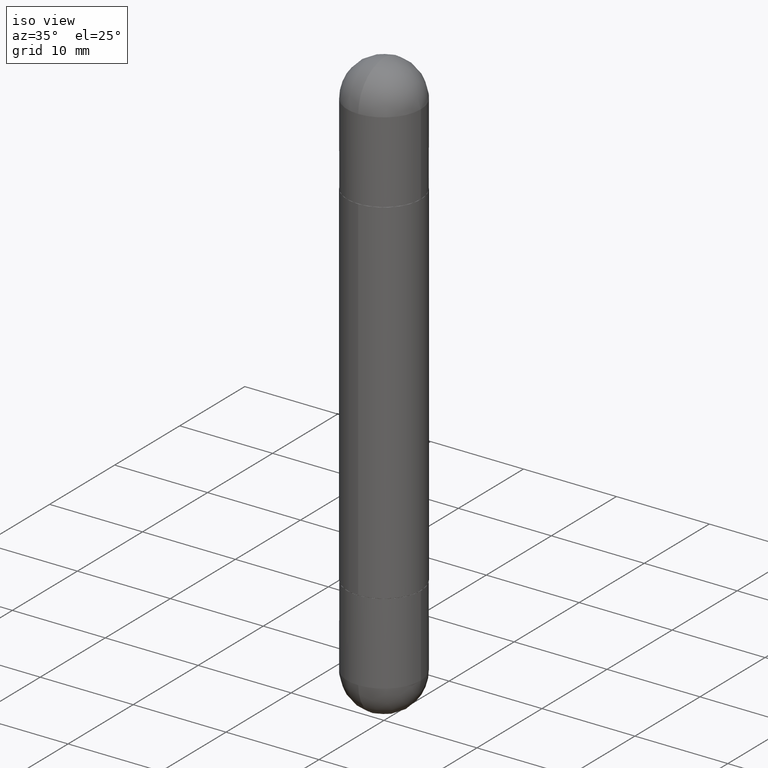
[diagram: clean part render]
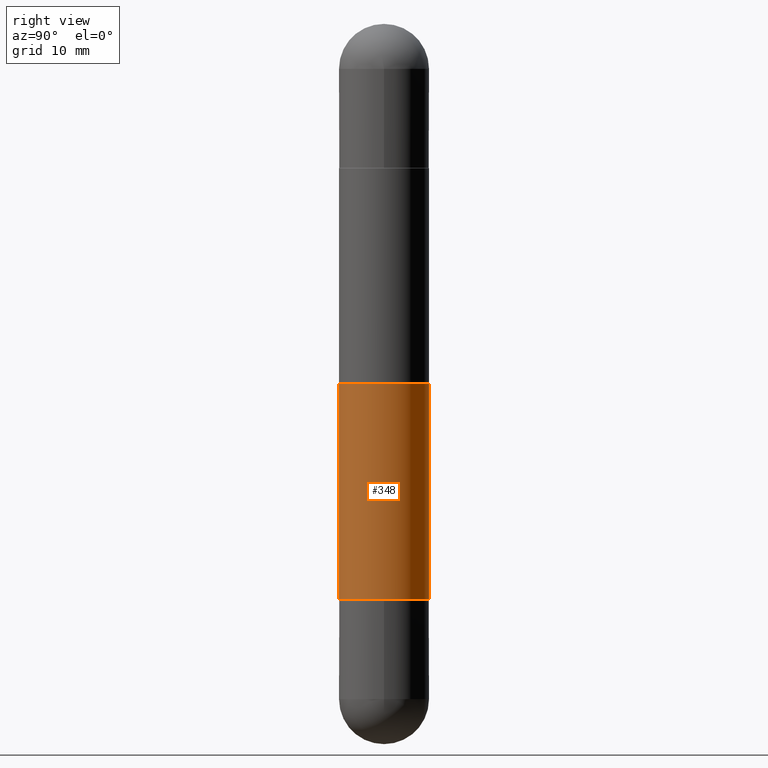
[diagram: tour spotlight — one face highlighted and labeled with its STEP entity id]
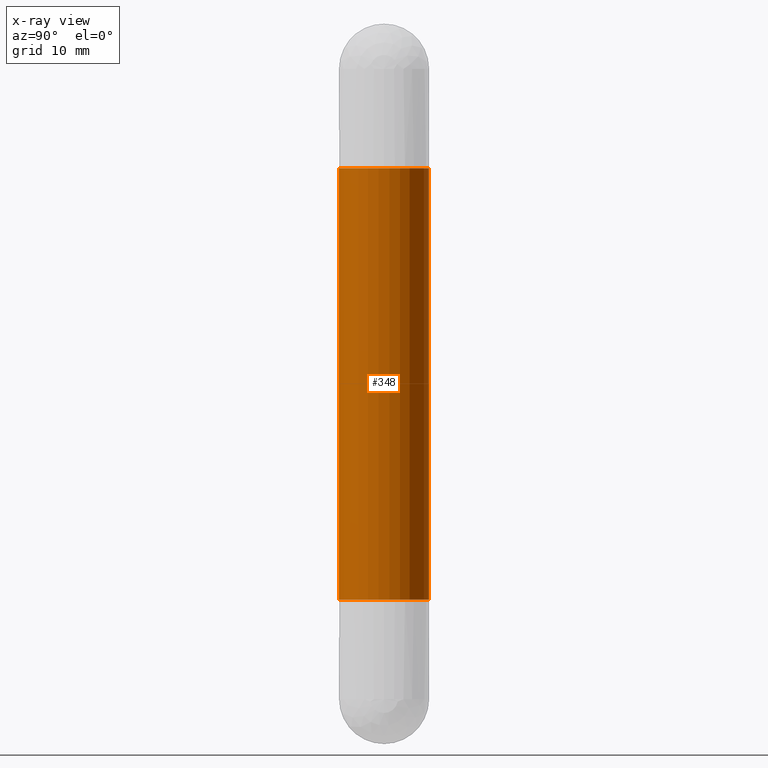
[diagram: x-ray of the same camera — body ghosted, this tour face saturated]
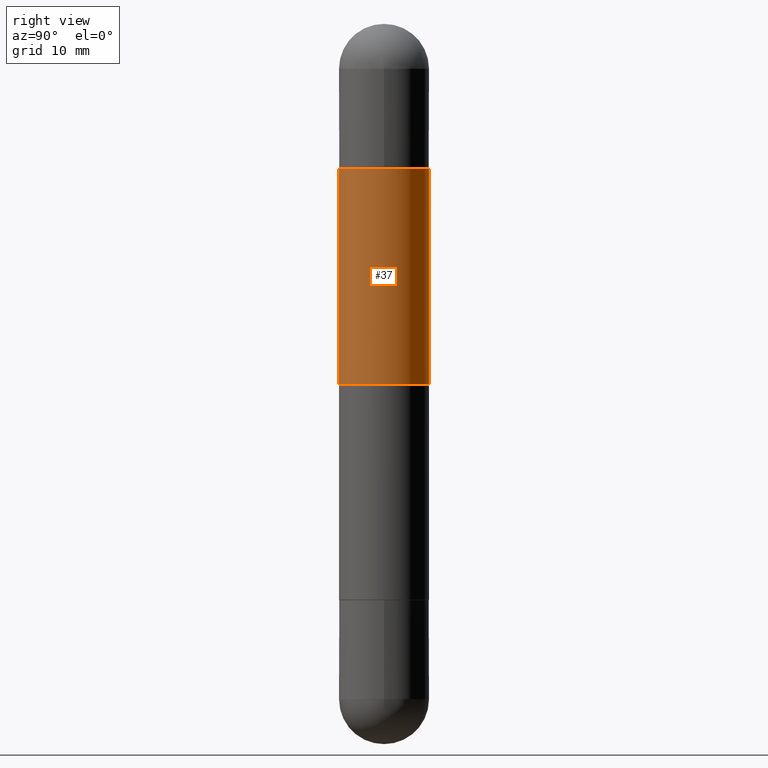
[diagram: tour spotlight — one face highlighted and labeled with its STEP entity id]
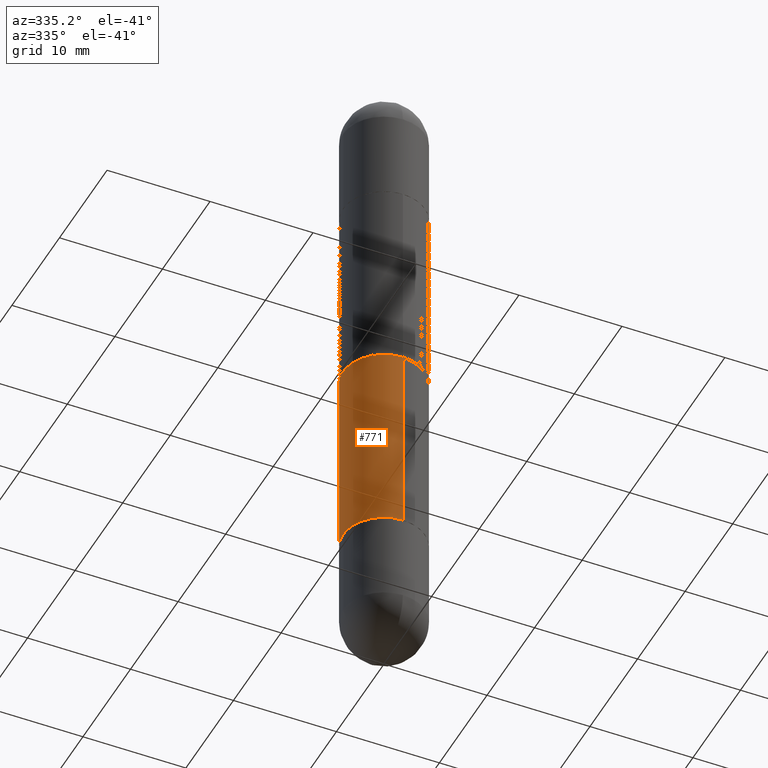
[diagram: tour spotlight — one face highlighted and labeled with its STEP entity id]
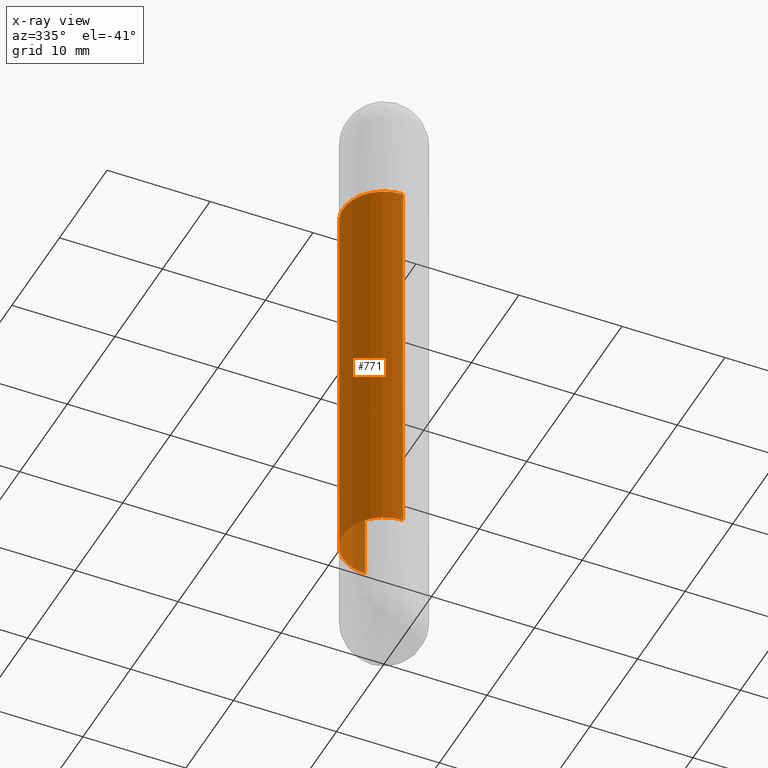
[diagram: x-ray of the same camera — body ghosted, this tour face saturated]
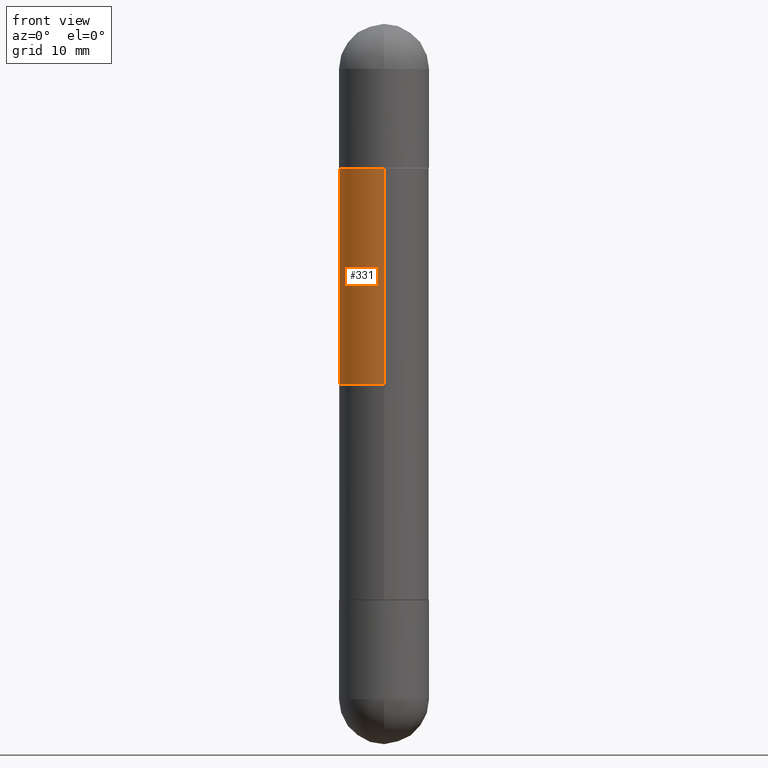
[diagram: tour spotlight — one face highlighted and labeled with its STEP entity id]
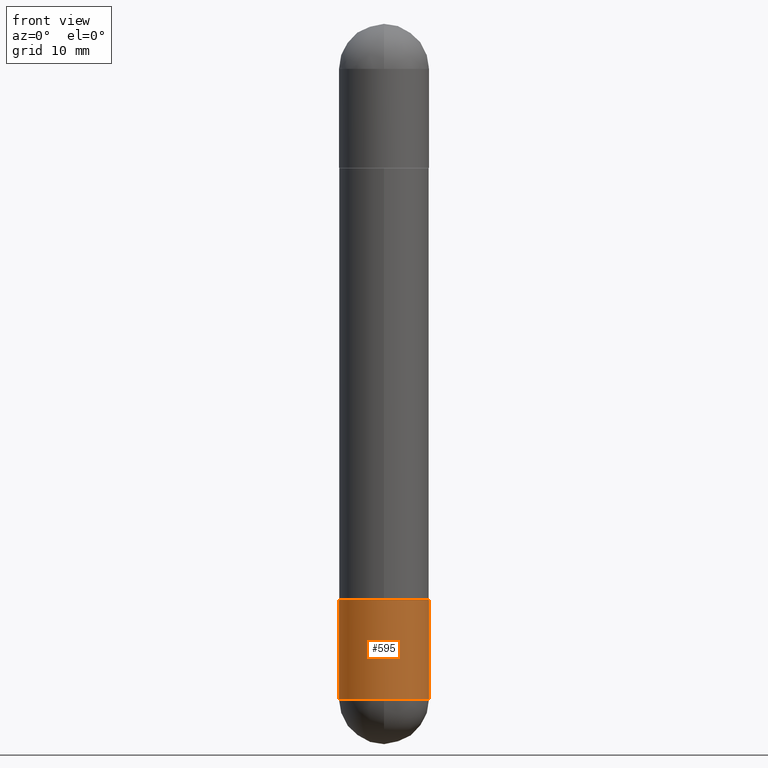
[diagram: tour spotlight — one face highlighted and labeled with its STEP entity id]
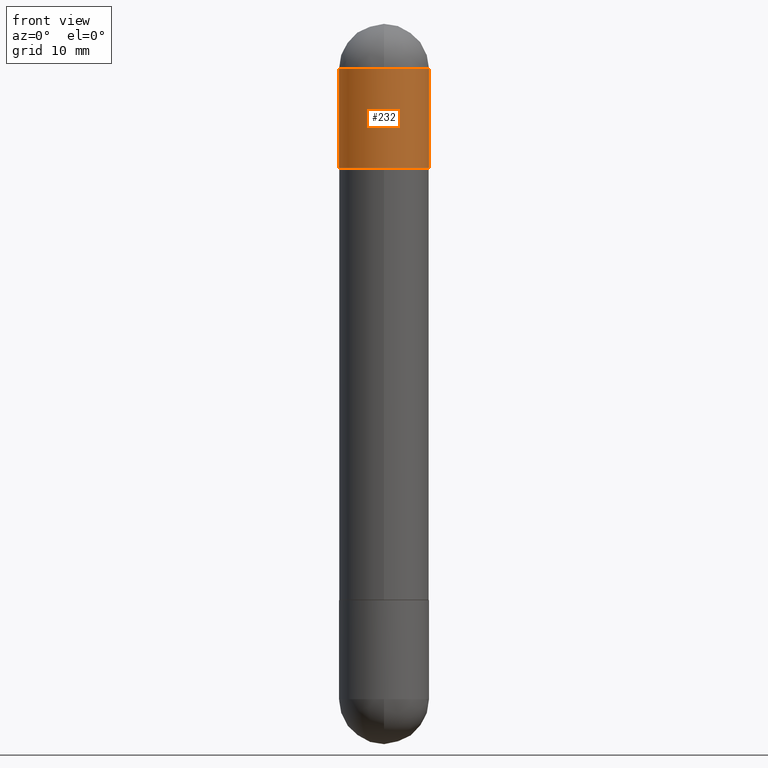
[diagram: tour spotlight — one face highlighted and labeled with its STEP entity id]
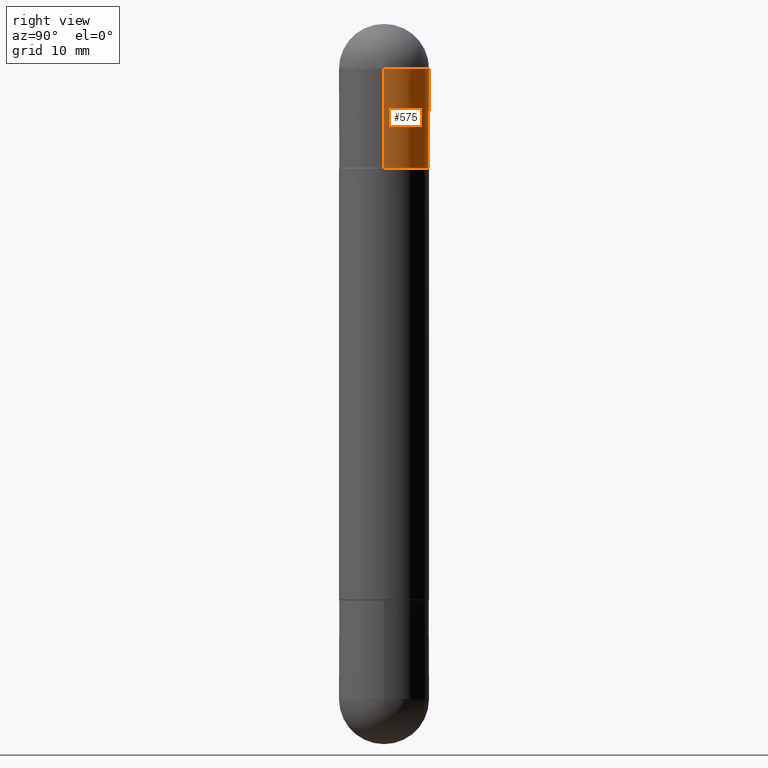
[diagram: tour spotlight — one face highlighted and labeled with its STEP entity id]
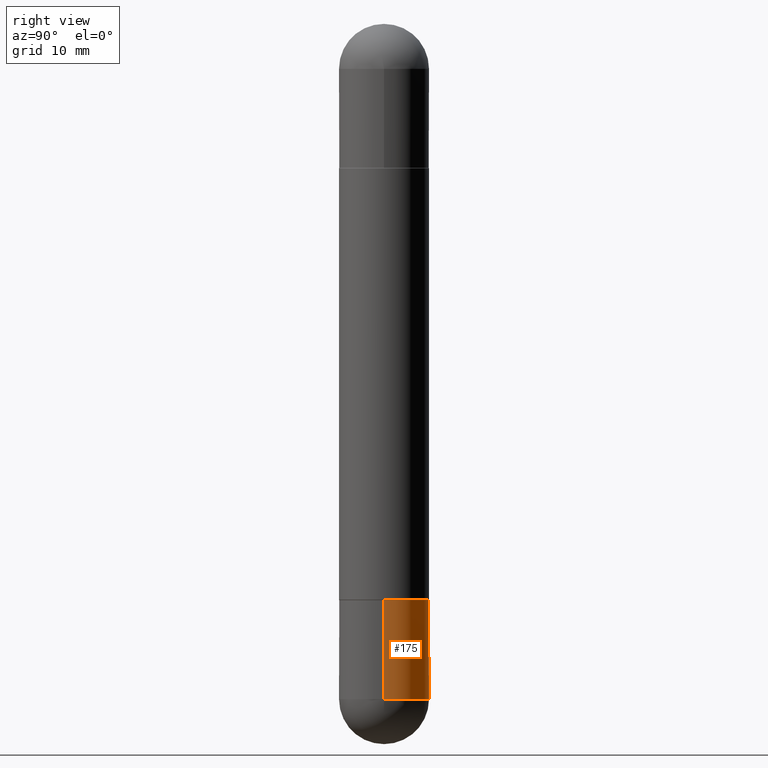
[diagram: tour spotlight — one face highlighted and labeled with its STEP entity id]
A machine part: a face-by-face anatomy tour. The part has 29 B-rep faces; the first image is the clean iso view, then the 8 largest visible faces are spotlighted one at a time (largest first), each with its STEP entity span.

Face 1 — right view, entity #348. An x-ray twin of the same camera follows (body ghosted, this face saturated) — the face is partly hidden behind the body. In plain terms, the highlighted cylindrical surface (partial cylindrical patch) has radius 3.9688 mm, axis along (-0, 0, -1).
Definition (entity closure, byte-faithful):
#23 = EDGE_LOOP ( 'NONE', ( #342, #467, #401, #350 ) ) ;
#25 = VERTEX_POINT ( 'NONE', #294 ) ;
#57 = EDGE_CURVE ( 'NONE', #580, #25, #273, .T. ) ;
#60 = DIRECTION ( 'NONE',  ( -6.982962677686265922E-15, -1.000000000000000000, -3.496765431890250609E-15 ) ) ;
#106 = CARTESIAN_POINT ( 'NONE',  ( -1.091087918388432039E-15, -0.1562500000000072720, -0.5010000000000013332 ) ) ;
#111 = CARTESIAN_POINT ( 'NONE',  ( -1.091087918388479962E-15, -0.1562500000000001388, -2.500000000000001332 ) ) ;
#131 = CIRCLE ( 'NONE', #297, 0.1562500000000002776 ) ;
#141 = VERTEX_POINT ( 'NONE', #180 ) ;
#180 = CARTESIAN_POINT ( 'NONE',  ( 1.071952812151833755E-15, 0.1562499999999933109, -1.999000000000000554 ) ) ;
#201 = CYLINDRICAL_SURFACE ( 'NONE', #638, 0.1562500000000001388 ) ;
#244 = DIRECTION ( 'NONE',  ( -6.982962677686265922E-15, -1.000000000000000000, 3.496765431890250609E-15 ) ) ;
#257 = DIRECTION ( 'NONE',  ( -6.982962677686265922E-15, -1.000000000000000000, -3.496765431890253764E-15 ) ) ;
#273 = CIRCLE ( 'NONE', #468, 0.1562500000000002776 ) ;
#294 = CARTESIAN_POINT ( 'NONE',  ( 1.071952812151852491E-15, 0.1562499999999932832, -0.5010000000000002229 ) ) ;
#297 = AXIS2_PLACEMENT_3D ( 'NONE', #417, #741, #244 ) ;
#342 = ORIENTED_EDGE ( 'NONE', *, *, #600, .F. ) ;
#348 = ADVANCED_FACE ( 'NONE', ( #450 ), #201, .T. ) ;
#350 = ORIENTED_EDGE ( 'NONE', *, *, #665, .T. ) ;
#368 = CARTESIAN_POINT ( 'NONE',  ( -1.091087918388432039E-15, -0.1562500000000072442, -1.998999999999999444 ) ) ;
#401 = ORIENTED_EDGE ( 'NONE', *, *, #654, .T. ) ;
#414 = DIRECTION ( 'NONE',  ( -2.445337981103964041E-29, 3.491668687805485632E-15, -1.000000000000000000 ) ) ;
#415 = DIRECTION ( 'NONE',  ( 2.445337981103964041E-29, -3.491668687805485632E-15, 1.000000000000000000 ) ) ;
#417 = CARTESIAN_POINT ( 'NONE',  ( 4.888230624226824176E-29, -6.979845706923165572E-15, -1.998999999999999888 ) ) ;
#424 = CARTESIAN_POINT ( 'NONE',  ( 1.071952812151802595E-15, 0.1562500000000001388, -2.500000000000000000 ) ) ;
#450 = FACE_OUTER_BOUND ( 'NONE', #23, .T. ) ;
#467 = ORIENTED_EDGE ( 'NONE', *, *, #57, .F. ) ;
#468 = AXIS2_PLACEMENT_3D ( 'NONE', #610, #415, #60 ) ;
#580 = VERTEX_POINT ( 'NONE', #106 ) ;
#600 = EDGE_CURVE ( 'NONE', #25, #141, #609, .T. ) ;
#609 = LINE ( 'NONE', #424, #692 ) ;
#610 = CARTESIAN_POINT ( 'NONE',  ( 4.888230624226824176E-29, -6.979845706923165572E-15, -0.5010000000000007780 ) ) ;
#629 = CARTESIAN_POINT ( 'NONE',  ( 0.000000000000000000, 0.000000000000000000, -2.500000000000000444 ) ) ;
#638 = AXIS2_PLACEMENT_3D ( 'NONE', #629, #756, #257 ) ;
#654 = EDGE_CURVE ( 'NONE', #580, #658, #735, .T. ) ;
#658 = VERTEX_POINT ( 'NONE', #368 ) ;
#665 = EDGE_CURVE ( 'NONE', #658, #141, #131, .T. ) ;
#692 = VECTOR ( 'NONE', #414, 39.37007874015748143 ) ;
#720 = VECTOR ( 'NONE', #796, 39.37007874015748143 ) ;
#735 = LINE ( 'NONE', #111, #720 ) ;
#741 = DIRECTION ( 'NONE',  ( -2.445337981103964041E-29, 3.491668687805485632E-15, 1.000000000000000000 ) ) ;
#756 = DIRECTION ( 'NONE',  ( -2.445337981103964041E-29, 3.491668687805485632E-15, -1.000000000000000000 ) ) ;
#796 = DIRECTION ( 'NONE',  ( -2.445337981103964041E-29, 3.491668687805485632E-15, -1.000000000000000000 ) ) ;

Face 2 — right view, entity #37. In plain terms, the highlighted cylindrical surface (partial cylindrical patch) has radius 3.9688 mm, axis along (-0, 0, -1).
Definition (entity closure, byte-faithful):
#15 = CARTESIAN_POINT ( 'NONE',  ( 1.071952812151851110E-15, 0.1562499999999957812, -1.250000000000000222 ) ) ;
#22 = CIRCLE ( 'NONE', #479, 0.1562500000000002776 ) ;
#37 = ADVANCED_FACE ( 'NONE', ( #364 ), #671, .T. ) ;
#48 = CARTESIAN_POINT ( 'NONE',  ( 4.888230624226824176E-29, -6.979845706923165572E-15, -0.5010000000000007780 ) ) ;
#62 = DIRECTION ( 'NONE',  ( -6.982962677686265922E-15, -1.000000000000000000, -3.496765431890250609E-15 ) ) ;
#114 = CARTESIAN_POINT ( 'NONE',  ( 1.071952812151802595E-15, 0.1562500000000001388, -2.500000000000000000 ) ) ;
#144 = ORIENTED_EDGE ( 'NONE', *, *, #686, .F. ) ;
#145 = VECTOR ( 'NONE', #485, 39.37007874015748143 ) ;
#231 = ORIENTED_EDGE ( 'NONE', *, *, #625, .F. ) ;
#241 = LINE ( 'NONE', #114, #145 ) ;
#245 = CARTESIAN_POINT ( 'NONE',  ( 0.000000000000000000, 0.000000000000000000, -2.500000000000000444 ) ) ;
#255 = EDGE_CURVE ( 'NONE', #285, #757, #260, .T. ) ;
#260 = CIRCLE ( 'NONE', #416, 0.1562500000000001388 ) ;
#285 = VERTEX_POINT ( 'NONE', #15 ) ;
#326 = VECTOR ( 'NONE', #527, 39.37007874015748143 ) ;
#357 = DIRECTION ( 'NONE',  ( -6.982962677686265922E-15, -1.000000000000000000, -3.496765431890253764E-15 ) ) ;
#359 = DIRECTION ( 'NONE',  ( 2.445337981103964041E-29, -3.491668687805485632E-15, 1.000000000000000000 ) ) ;
#364 = FACE_OUTER_BOUND ( 'NONE', #456, .T. ) ;
#372 = CARTESIAN_POINT ( 'NONE',  ( 1.071952812151852491E-15, 0.1562499999999932832, -0.5010000000000002229 ) ) ;
#382 = CARTESIAN_POINT ( 'NONE',  ( -1.091087918388440322E-15, -0.1562500000000045242, -1.250000000000000222 ) ) ;
#409 = ORIENTED_EDGE ( 'NONE', *, *, #255, .F. ) ;
#416 = AXIS2_PLACEMENT_3D ( 'NONE', #446, #441, #511 ) ;
#441 = DIRECTION ( 'NONE',  ( -0.000000000000000000, -0.000000000000000000, -1.000000000000000000 ) ) ;
#446 = CARTESIAN_POINT ( 'NONE',  ( 3.056672476379955962E-29, -4.364585859756858224E-15, -1.250000000000000222 ) ) ;
#456 = EDGE_LOOP ( 'NONE', ( #144, #231, #519, #409 ) ) ;
#476 = EDGE_CURVE ( 'NONE', #587, #757, #794, .T. ) ;
#479 = AXIS2_PLACEMENT_3D ( 'NONE', #48, #359, #62 ) ;
#485 = DIRECTION ( 'NONE',  ( -2.445337981103964041E-29, 3.491668687805485632E-15, -1.000000000000000000 ) ) ;
#511 = DIRECTION ( 'NONE',  ( -1.000000000000000000, 0.000000000000000000, 0.000000000000000000 ) ) ;
#519 = ORIENTED_EDGE ( 'NONE', *, *, #476, .T. ) ;
#527 = DIRECTION ( 'NONE',  ( -2.445337981103964041E-29, 3.491668687805485632E-15, -1.000000000000000000 ) ) ;
#587 = VERTEX_POINT ( 'NONE', #597 ) ;
#593 = CARTESIAN_POINT ( 'NONE',  ( -1.091087918388479962E-15, -0.1562500000000001388, -2.500000000000001332 ) ) ;
#597 = CARTESIAN_POINT ( 'NONE',  ( -1.091087918388432039E-15, -0.1562500000000072720, -0.5010000000000013332 ) ) ;
#613 = AXIS2_PLACEMENT_3D ( 'NONE', #245, #742, #357 ) ;
#625 = EDGE_CURVE ( 'NONE', #587, #730, #22, .T. ) ;
#671 = CYLINDRICAL_SURFACE ( 'NONE', #613, 0.1562500000000001388 ) ;
#686 = EDGE_CURVE ( 'NONE', #730, #285, #241, .T. ) ;
#730 = VERTEX_POINT ( 'NONE', #372 ) ;
#742 = DIRECTION ( 'NONE',  ( -2.445337981103964041E-29, 3.491668687805485632E-15, -1.000000000000000000 ) ) ;
#757 = VERTEX_POINT ( 'NONE', #382 ) ;
#794 = LINE ( 'NONE', #593, #326 ) ;

Face 3 — auxiliary view, entity #771. An x-ray twin of the same camera follows (body ghosted, this face saturated) — the face is partly hidden behind the body. In plain terms, the highlighted cylindrical surface (partial cylindrical patch) has radius 3.9688 mm, axis along (-0, 0, -1).
Definition (entity closure, byte-faithful):
#6 = ORIENTED_EDGE ( 'NONE', *, *, #600, .T. ) ;
#25 = VERTEX_POINT ( 'NONE', #294 ) ;
#47 = EDGE_CURVE ( 'NONE', #141, #658, #134, .T. ) ;
#70 = DIRECTION ( 'NONE',  ( 2.445337981103964041E-29, -3.491668687805485632E-15, 1.000000000000000000 ) ) ;
#106 = CARTESIAN_POINT ( 'NONE',  ( -1.091087918388432039E-15, -0.1562500000000072720, -0.5010000000000013332 ) ) ;
#110 = CIRCLE ( 'NONE', #561, 0.1562500000000002776 ) ;
#111 = CARTESIAN_POINT ( 'NONE',  ( -1.091087918388479962E-15, -0.1562500000000001388, -2.500000000000001332 ) ) ;
#132 = CARTESIAN_POINT ( 'NONE',  ( 0.000000000000000000, 0.000000000000000000, -2.500000000000000444 ) ) ;
#134 = CIRCLE ( 'NONE', #695, 0.1562500000000002776 ) ;
#135 = DIRECTION ( 'NONE',  ( -6.982962677686265922E-15, -1.000000000000000000, -3.496765431890250609E-15 ) ) ;
#138 = CYLINDRICAL_SURFACE ( 'NONE', #773, 0.1562500000000001388 ) ;
#141 = VERTEX_POINT ( 'NONE', #180 ) ;
#142 = FACE_OUTER_BOUND ( 'NONE', #292, .T. ) ;
#180 = CARTESIAN_POINT ( 'NONE',  ( 1.071952812151833755E-15, 0.1562499999999933109, -1.999000000000000554 ) ) ;
#196 = DIRECTION ( 'NONE',  ( -2.445337981103964041E-29, 3.491668687805485632E-15, -1.000000000000000000 ) ) ;
#211 = ORIENTED_EDGE ( 'NONE', *, *, #47, .T. ) ;
#292 = EDGE_LOOP ( 'NONE', ( #349, #6, #211, #502 ) ) ;
#294 = CARTESIAN_POINT ( 'NONE',  ( 1.071952812151852491E-15, 0.1562499999999932832, -0.5010000000000002229 ) ) ;
#308 = EDGE_CURVE ( 'NONE', #25, #580, #110, .T. ) ;
#349 = ORIENTED_EDGE ( 'NONE', *, *, #308, .F. ) ;
#360 = DIRECTION ( 'NONE',  ( -2.445337981103964041E-29, 3.491668687805485632E-15, 1.000000000000000000 ) ) ;
#368 = CARTESIAN_POINT ( 'NONE',  ( -1.091087918388432039E-15, -0.1562500000000072442, -1.998999999999999444 ) ) ;
#369 = DIRECTION ( 'NONE',  ( -6.982962677686265922E-15, -1.000000000000000000, 3.496765431890250609E-15 ) ) ;
#414 = DIRECTION ( 'NONE',  ( -2.445337981103964041E-29, 3.491668687805485632E-15, -1.000000000000000000 ) ) ;
#424 = CARTESIAN_POINT ( 'NONE',  ( 1.071952812151802595E-15, 0.1562500000000001388, -2.500000000000000000 ) ) ;
#489 = CARTESIAN_POINT ( 'NONE',  ( 4.888230624226824176E-29, -6.979845706923165572E-15, -1.998999999999999888 ) ) ;
#502 = ORIENTED_EDGE ( 'NONE', *, *, #654, .F. ) ;
#561 = AXIS2_PLACEMENT_3D ( 'NONE', #693, #70, #135 ) ;
#580 = VERTEX_POINT ( 'NONE', #106 ) ;
#600 = EDGE_CURVE ( 'NONE', #25, #141, #609, .T. ) ;
#609 = LINE ( 'NONE', #424, #692 ) ;
#654 = EDGE_CURVE ( 'NONE', #580, #658, #735, .T. ) ;
#658 = VERTEX_POINT ( 'NONE', #368 ) ;
#691 = DIRECTION ( 'NONE',  ( -6.982962677686265922E-15, -1.000000000000000000, -3.496765431890253764E-15 ) ) ;
#692 = VECTOR ( 'NONE', #414, 39.37007874015748143 ) ;
#693 = CARTESIAN_POINT ( 'NONE',  ( 4.888230624226824176E-29, -6.979845706923165572E-15, -0.5010000000000007780 ) ) ;
#695 = AXIS2_PLACEMENT_3D ( 'NONE', #489, #360, #369 ) ;
#720 = VECTOR ( 'NONE', #796, 39.37007874015748143 ) ;
#735 = LINE ( 'NONE', #111, #720 ) ;
#771 = ADVANCED_FACE ( 'NONE', ( #142 ), #138, .T. ) ;
#773 = AXIS2_PLACEMENT_3D ( 'NONE', #132, #196, #691 ) ;
#796 = DIRECTION ( 'NONE',  ( -2.445337981103964041E-29, 3.491668687805485632E-15, -1.000000000000000000 ) ) ;

Face 4 — front view, entity #331. In plain terms, the highlighted cylindrical surface (partial cylindrical patch) has radius 3.9688 mm, axis along (-0, 0, -1).
Definition (entity closure, byte-faithful):
#15 = CARTESIAN_POINT ( 'NONE',  ( 1.071952812151851110E-15, 0.1562499999999957812, -1.250000000000000222 ) ) ;
#27 = AXIS2_PLACEMENT_3D ( 'NONE', #702, #501, #573 ) ;
#46 = ORIENTED_EDGE ( 'NONE', *, *, #453, .F. ) ;
#98 = ORIENTED_EDGE ( 'NONE', *, *, #619, .F. ) ;
#114 = CARTESIAN_POINT ( 'NONE',  ( 1.071952812151802595E-15, 0.1562500000000001388, -2.500000000000000000 ) ) ;
#145 = VECTOR ( 'NONE', #485, 39.37007874015748143 ) ;
#154 = DIRECTION ( 'NONE',  ( -1.000000000000000000, 0.000000000000000000, 0.000000000000000000 ) ) ;
#206 = FACE_OUTER_BOUND ( 'NONE', #634, .T. ) ;
#241 = LINE ( 'NONE', #114, #145 ) ;
#271 = ORIENTED_EDGE ( 'NONE', *, *, #476, .F. ) ;
#285 = VERTEX_POINT ( 'NONE', #15 ) ;
#289 = AXIS2_PLACEMENT_3D ( 'NONE', #656, #462, #154 ) ;
#293 = DIRECTION ( 'NONE',  ( 2.445337981103964041E-29, -3.491668687805485632E-15, 1.000000000000000000 ) ) ;
#295 = DIRECTION ( 'NONE',  ( -6.982962677686265922E-15, -1.000000000000000000, -3.496765431890250609E-15 ) ) ;
#326 = VECTOR ( 'NONE', #527, 39.37007874015748143 ) ;
#331 = ADVANCED_FACE ( 'NONE', ( #206 ), #639, .T. ) ;
#372 = CARTESIAN_POINT ( 'NONE',  ( 1.071952812151852491E-15, 0.1562499999999932832, -0.5010000000000002229 ) ) ;
#382 = CARTESIAN_POINT ( 'NONE',  ( -1.091087918388440322E-15, -0.1562500000000045242, -1.250000000000000222 ) ) ;
#413 = CIRCLE ( 'NONE', #649, 0.1562500000000002776 ) ;
#453 = EDGE_CURVE ( 'NONE', #757, #285, #683, .T. ) ;
#462 = DIRECTION ( 'NONE',  ( -0.000000000000000000, -0.000000000000000000, -1.000000000000000000 ) ) ;
#476 = EDGE_CURVE ( 'NONE', #587, #757, #794, .T. ) ;
#485 = DIRECTION ( 'NONE',  ( -2.445337981103964041E-29, 3.491668687805485632E-15, -1.000000000000000000 ) ) ;
#501 = DIRECTION ( 'NONE',  ( -2.445337981103964041E-29, 3.491668687805485632E-15, -1.000000000000000000 ) ) ;
#527 = DIRECTION ( 'NONE',  ( -2.445337981103964041E-29, 3.491668687805485632E-15, -1.000000000000000000 ) ) ;
#556 = CARTESIAN_POINT ( 'NONE',  ( 4.888230624226824176E-29, -6.979845706923165572E-15, -0.5010000000000007780 ) ) ;
#573 = DIRECTION ( 'NONE',  ( -6.982962677686265922E-15, -1.000000000000000000, -3.496765431890253764E-15 ) ) ;
#587 = VERTEX_POINT ( 'NONE', #597 ) ;
#593 = CARTESIAN_POINT ( 'NONE',  ( -1.091087918388479962E-15, -0.1562500000000001388, -2.500000000000001332 ) ) ;
#597 = CARTESIAN_POINT ( 'NONE',  ( -1.091087918388432039E-15, -0.1562500000000072720, -0.5010000000000013332 ) ) ;
#619 = EDGE_CURVE ( 'NONE', #730, #587, #413, .T. ) ;
#634 = EDGE_LOOP ( 'NONE', ( #98, #655, #46, #271 ) ) ;
#639 = CYLINDRICAL_SURFACE ( 'NONE', #27, 0.1562500000000001388 ) ;
#649 = AXIS2_PLACEMENT_3D ( 'NONE', #556, #293, #295 ) ;
#655 = ORIENTED_EDGE ( 'NONE', *, *, #686, .T. ) ;
#656 = CARTESIAN_POINT ( 'NONE',  ( 3.056672476379955962E-29, -4.364585859756858224E-15, -1.250000000000000222 ) ) ;
#683 = CIRCLE ( 'NONE', #289, 0.1562500000000001388 ) ;
#686 = EDGE_CURVE ( 'NONE', #730, #285, #241, .T. ) ;
#702 = CARTESIAN_POINT ( 'NONE',  ( 0.000000000000000000, 0.000000000000000000, -2.500000000000000444 ) ) ;
#730 = VERTEX_POINT ( 'NONE', #372 ) ;
#757 = VERTEX_POINT ( 'NONE', #382 ) ;
#794 = LINE ( 'NONE', #593, #326 ) ;

Face 5 — front view, entity #595. In plain terms, the highlighted cylindrical surface (partial cylindrical patch) has radius 3.9688 mm, axis along (-0, 0, 1).
Definition (entity closure, byte-faithful):
#34 = CARTESIAN_POINT ( 'NONE',  ( -0.1562500000000000000, 1.110223024625156540E-15, -7.685836078523291160E-30 ) ) ;
#58 = CARTESIAN_POINT ( 'NONE',  ( -0.1562500000000000000, -6.472838008174799945E-15, -2.000000000000000000 ) ) ;
#79 = VERTEX_POINT ( 'NONE', #606 ) ;
#94 = VERTEX_POINT ( 'NONE', #482 ) ;
#146 = EDGE_CURVE ( 'NONE', #726, #262, #522, .T. ) ;
#148 = EDGE_LOOP ( 'NONE', ( #474, #166, #588, #570, #713 ) ) ;
#166 = ORIENTED_EDGE ( 'NONE', *, *, #747, .T. ) ;
#187 = DIRECTION ( 'NONE',  ( -2.445468806185136597E-29, 3.491481338843145583E-15, 1.000000000000000000 ) ) ;
#192 = DIRECTION ( 'NONE',  ( 1.000000000000000000, -6.982962677686269077E-15, 0.000000000000000000 ) ) ;
#247 = CARTESIAN_POINT ( 'NONE',  ( 0.000000000000000000, 0.000000000000000000, 0.000000000000000000 ) ) ;
#252 = CARTESIAN_POINT ( 'NONE',  ( 4.890937612370273194E-29, -6.982962677686291165E-15, -2.000000000000000000 ) ) ;
#262 = VERTEX_POINT ( 'NONE', #380 ) ;
#279 = DIRECTION ( 'NONE',  ( -2.445468806185136877E-29, 3.491481338843145188E-15, 1.000000000000000000 ) ) ;
#302 = FACE_OUTER_BOUND ( 'NONE', #148, .T. ) ;
#309 = DIRECTION ( 'NONE',  ( -2.445468806185136597E-29, 3.491481338843145583E-15, 1.000000000000000000 ) ) ;
#322 = CIRCLE ( 'NONE', #787, 0.1562500000000000000 ) ;
#344 = LINE ( 'NONE', #34, #392 ) ;
#356 = DIRECTION ( 'NONE',  ( -2.445468806185136597E-29, 3.491481338843145583E-15, 1.000000000000000000 ) ) ;
#362 = CARTESIAN_POINT ( 'NONE',  ( 0.1562500000000000000, -1.091087918388479174E-15, 7.619026212181150377E-30 ) ) ;
#380 = CARTESIAN_POINT ( 'NONE',  ( 0.1562500000000000000, -8.074050596074770339E-15, -2.000000000000000000 ) ) ;
#387 = CIRCLE ( 'NONE', #582, 0.1562500000000000000 ) ;
#392 = VECTOR ( 'NONE', #279, 39.37007874015748143 ) ;
#402 = VECTOR ( 'NONE', #746, 39.37007874015748143 ) ;
#412 = VERTEX_POINT ( 'NONE', #579 ) ;
#474 = ORIENTED_EDGE ( 'NONE', *, *, #545, .F. ) ;
#482 = CARTESIAN_POINT ( 'NONE',  ( 0.1562500000000000000, -8.674148951188436448E-15, -2.343750000000000000 ) ) ;
#522 = CIRCLE ( 'NONE', #706, 0.1562500000000000000 ) ;
#545 = EDGE_CURVE ( 'NONE', #412, #726, #344, .T. ) ;
#558 = DIRECTION ( 'NONE',  ( 1.000000000000000000, -6.982962677686262766E-15, 0.000000000000000000 ) ) ;
#570 = ORIENTED_EDGE ( 'NONE', *, *, #715, .T. ) ;
#579 = CARTESIAN_POINT ( 'NONE',  ( -0.1562500000000000000, -6.472838008174800734E-15, -2.343750000000000000 ) ) ;
#582 = AXIS2_PLACEMENT_3D ( 'NONE', #810, #615, #669 ) ;
#588 = ORIENTED_EDGE ( 'NONE', *, *, #676, .T. ) ;
#595 = ADVANCED_FACE ( 'NONE', ( #302 ), #684, .T. ) ;
#606 = CARTESIAN_POINT ( 'NONE',  ( -1.110223024625101517E-15, -0.1562500000000085487, -2.343749999999999556 ) ) ;
#615 = DIRECTION ( 'NONE',  ( -2.445468806185136597E-29, 3.491481338843145583E-15, 1.000000000000000000 ) ) ;
#617 = CARTESIAN_POINT ( 'NONE',  ( 5.731567514496413899E-29, -8.183159387913622595E-15, -2.343750000000000000 ) ) ;
#669 = DIRECTION ( 'NONE',  ( 1.000000000000000000, -6.982962677686262766E-15, 0.000000000000000000 ) ) ;
#676 = EDGE_CURVE ( 'NONE', #79, #94, #387, .T. ) ;
#678 = DIRECTION ( 'NONE',  ( 1.000000000000000000, -6.982962677686266711E-15, 4.876176775795936353E-29 ) ) ;
#684 = CYLINDRICAL_SURFACE ( 'NONE', #759, 0.1562500000000000000 ) ;
#706 = AXIS2_PLACEMENT_3D ( 'NONE', #252, #187, #192 ) ;
#713 = ORIENTED_EDGE ( 'NONE', *, *, #146, .F. ) ;
#715 = EDGE_CURVE ( 'NONE', #94, #262, #731, .T. ) ;
#726 = VERTEX_POINT ( 'NONE', #58 ) ;
#731 = LINE ( 'NONE', #362, #402 ) ;
#746 = DIRECTION ( 'NONE',  ( -2.445468806185136877E-29, 3.491481338843145188E-15, 1.000000000000000000 ) ) ;
#747 = EDGE_CURVE ( 'NONE', #412, #79, #322, .T. ) ;
#759 = AXIS2_PLACEMENT_3D ( 'NONE', #247, #356, #678 ) ;
#787 = AXIS2_PLACEMENT_3D ( 'NONE', #617, #309, #558 ) ;
#810 = CARTESIAN_POINT ( 'NONE',  ( 5.731567514496413899E-29, -8.183159387913622595E-15, -2.343750000000000000 ) ) ;

Face 6 — front view, entity #232. In plain terms, the highlighted cylindrical surface (partial cylindrical patch) has radius 3.9688 mm, axis along (-0, 0, -1).
Definition (entity closure, byte-faithful):
#3 = VERTEX_POINT ( 'NONE', #161 ) ;
#41 = ORIENTED_EDGE ( 'NONE', *, *, #371, .T. ) ;
#67 = CARTESIAN_POINT ( 'NONE',  ( 4.890937612370273194E-29, -6.982962677686291165E-15, -0.5000000000000006661 ) ) ;
#88 = DIRECTION ( 'NONE',  ( 1.000000000000000000, -6.982962677686262766E-15, 0.000000000000000000 ) ) ;
#95 = AXIS2_PLACEMENT_3D ( 'NONE', #562, #717, #88 ) ;
#109 = EDGE_CURVE ( 'NONE', #3, #627, #183, .T. ) ;
#117 = DIRECTION ( 'NONE',  ( 2.445468806185136597E-29, -3.491481338843145583E-15, 1.000000000000000000 ) ) ;
#123 = CIRCLE ( 'NONE', #228, 0.1562500000000000000 ) ;
#147 = LINE ( 'NONE', #390, #614 ) ;
#152 = ORIENTED_EDGE ( 'NONE', *, *, #398, .F. ) ;
#161 = CARTESIAN_POINT ( 'NONE',  ( 0.1562500000000000000, -8.674148951188436448E-15, -0.1562500000000005551 ) ) ;
#181 = CARTESIAN_POINT ( 'NONE',  ( 5.731567514496413899E-29, -8.183159387913622595E-15, -0.1562500000000005551 ) ) ;
#183 = LINE ( 'NONE', #423, #428 ) ;
#185 = CARTESIAN_POINT ( 'NONE',  ( -1.071952812151746981E-15, -0.1562500000000085487, -0.1562500000000011102 ) ) ;
#228 = AXIS2_PLACEMENT_3D ( 'NONE', #67, #455, #314 ) ;
#232 = ADVANCED_FACE ( 'NONE', ( #754 ), #688, .T. ) ;
#238 = CARTESIAN_POINT ( 'NONE',  ( 0.000000000000000000, 0.000000000000000000, -2.500000000000000444 ) ) ;
#253 = DIRECTION ( 'NONE',  ( 1.000000000000000000, -6.982962677686266711E-15, 0.000000000000000000 ) ) ;
#268 = EDGE_LOOP ( 'NONE', ( #689, #41, #785, #581, #152 ) ) ;
#298 = DIRECTION ( 'NONE',  ( -2.445468806185136877E-29, 3.491481338843145188E-15, -1.000000000000000000 ) ) ;
#305 = DIRECTION ( 'NONE',  ( 1.000000000000000000, -6.982962677686262766E-15, 0.000000000000000000 ) ) ;
#314 = DIRECTION ( 'NONE',  ( 1.000000000000000000, -6.982962677686269077E-15, 0.000000000000000000 ) ) ;
#371 = EDGE_CURVE ( 'NONE', #442, #524, #147, .T. ) ;
#383 = DIRECTION ( 'NONE',  ( -2.445468806185136597E-29, 3.491481338843145583E-15, -1.000000000000000000 ) ) ;
#390 = CARTESIAN_POINT ( 'NONE',  ( -0.1562500000000000000, 1.071952812151801807E-15, -2.500000000000000444 ) ) ;
#393 = EDGE_CURVE ( 'NONE', #524, #627, #123, .T. ) ;
#395 = CARTESIAN_POINT ( 'NONE',  ( -0.1562500000000000000, -6.511108220648156257E-15, -0.1562500000000005551 ) ) ;
#398 = EDGE_CURVE ( 'NONE', #642, #3, #470, .T. ) ;
#421 = CARTESIAN_POINT ( 'NONE',  ( 0.1562500000000000000, -8.074050596074770339E-15, -0.5000000000000006661 ) ) ;
#423 = CARTESIAN_POINT ( 'NONE',  ( 0.1562500000000000000, -1.091087918388479174E-15, -2.500000000000000444 ) ) ;
#428 = VECTOR ( 'NONE', #298, 39.37007874015748143 ) ;
#442 = VERTEX_POINT ( 'NONE', #395 ) ;
#455 = DIRECTION ( 'NONE',  ( 2.445468806185136597E-29, -3.491481338843145583E-15, 1.000000000000000000 ) ) ;
#470 = CIRCLE ( 'NONE', #95, 0.1562500000000000000 ) ;
#496 = AXIS2_PLACEMENT_3D ( 'NONE', #238, #383, #253 ) ;
#524 = VERTEX_POINT ( 'NONE', #589 ) ;
#559 = AXIS2_PLACEMENT_3D ( 'NONE', #181, #117, #305 ) ;
#562 = CARTESIAN_POINT ( 'NONE',  ( 5.731567514496413899E-29, -8.183159387913622595E-15, -0.1562500000000005551 ) ) ;
#577 = DIRECTION ( 'NONE',  ( -2.445468806185136877E-29, 3.491481338843145188E-15, -1.000000000000000000 ) ) ;
#581 = ORIENTED_EDGE ( 'NONE', *, *, #109, .F. ) ;
#589 = CARTESIAN_POINT ( 'NONE',  ( -0.1562500000000000000, -6.511108220648155468E-15, -0.5000000000000006661 ) ) ;
#608 = CIRCLE ( 'NONE', #559, 0.1562500000000000000 ) ;
#614 = VECTOR ( 'NONE', #577, 39.37007874015748143 ) ;
#627 = VERTEX_POINT ( 'NONE', #421 ) ;
#642 = VERTEX_POINT ( 'NONE', #185 ) ;
#688 = CYLINDRICAL_SURFACE ( 'NONE', #496, 0.1562500000000000000 ) ;
#689 = ORIENTED_EDGE ( 'NONE', *, *, #690, .F. ) ;
#690 = EDGE_CURVE ( 'NONE', #442, #642, #608, .T. ) ;
#717 = DIRECTION ( 'NONE',  ( 2.445468806185136597E-29, -3.491481338843145583E-15, 1.000000000000000000 ) ) ;
#754 = FACE_OUTER_BOUND ( 'NONE', #268, .T. ) ;
#785 = ORIENTED_EDGE ( 'NONE', *, *, #393, .T. ) ;

Face 7 — right view, entity #575. In plain terms, the highlighted cylindrical surface (partial cylindrical patch) has radius 3.9688 mm, axis along (-0, 0, -1).
Definition (entity closure, byte-faithful):
#3 = VERTEX_POINT ( 'NONE', #161 ) ;
#5 = DIRECTION ( 'NONE',  ( 1.000000000000000000, -6.982962677686262766E-15, 0.000000000000000000 ) ) ;
#14 = AXIS2_PLACEMENT_3D ( 'NONE', #19, #518, #772 ) ;
#19 = CARTESIAN_POINT ( 'NONE',  ( 4.890937612370273194E-29, -6.982962677686291165E-15, -0.5000000000000006661 ) ) ;
#39 = DIRECTION ( 'NONE',  ( 2.445468806185136597E-29, -3.491481338843145583E-15, 1.000000000000000000 ) ) ;
#44 = CIRCLE ( 'NONE', #682, 0.1562500000000000000 ) ;
#85 = VERTEX_POINT ( 'NONE', #803 ) ;
#90 = ORIENTED_EDGE ( 'NONE', *, *, #539, .F. ) ;
#109 = EDGE_CURVE ( 'NONE', #3, #627, #183, .T. ) ;
#147 = LINE ( 'NONE', #390, #614 ) ;
#156 = ORIENTED_EDGE ( 'NONE', *, *, #373, .T. ) ;
#161 = CARTESIAN_POINT ( 'NONE',  ( 0.1562500000000000000, -8.674148951188436448E-15, -0.1562500000000005551 ) ) ;
#169 = DIRECTION ( 'NONE',  ( -2.445468806185136597E-29, 3.491481338843145583E-15, -1.000000000000000000 ) ) ;
#183 = LINE ( 'NONE', #423, #428 ) ;
#224 = CARTESIAN_POINT ( 'NONE',  ( 5.731567514496413899E-29, -8.183159387913622595E-15, -0.1562500000000005551 ) ) ;
#230 = FACE_OUTER_BOUND ( 'NONE', #258, .T. ) ;
#258 = EDGE_LOOP ( 'NONE', ( #318, #90, #400, #793, #156 ) ) ;
#291 = EDGE_CURVE ( 'NONE', #3, #85, #44, .T. ) ;
#298 = DIRECTION ( 'NONE',  ( -2.445468806185136877E-29, 3.491481338843145188E-15, -1.000000000000000000 ) ) ;
#301 = CIRCLE ( 'NONE', #14, 0.1562500000000000000 ) ;
#318 = ORIENTED_EDGE ( 'NONE', *, *, #371, .F. ) ;
#329 = DIRECTION ( 'NONE',  ( 2.445468806185136597E-29, -3.491481338843145583E-15, 1.000000000000000000 ) ) ;
#371 = EDGE_CURVE ( 'NONE', #442, #524, #147, .T. ) ;
#373 = EDGE_CURVE ( 'NONE', #627, #524, #301, .T. ) ;
#390 = CARTESIAN_POINT ( 'NONE',  ( -0.1562500000000000000, 1.071952812151801807E-15, -2.500000000000000444 ) ) ;
#395 = CARTESIAN_POINT ( 'NONE',  ( -0.1562500000000000000, -6.511108220648156257E-15, -0.1562500000000005551 ) ) ;
#400 = ORIENTED_EDGE ( 'NONE', *, *, #291, .F. ) ;
#411 = DIRECTION ( 'NONE',  ( 1.000000000000000000, -6.982962677686266711E-15, 0.000000000000000000 ) ) ;
#421 = CARTESIAN_POINT ( 'NONE',  ( 0.1562500000000000000, -8.074050596074770339E-15, -0.5000000000000006661 ) ) ;
#423 = CARTESIAN_POINT ( 'NONE',  ( 0.1562500000000000000, -1.091087918388479174E-15, -2.500000000000000444 ) ) ;
#428 = VECTOR ( 'NONE', #298, 39.37007874015748143 ) ;
#442 = VERTEX_POINT ( 'NONE', #395 ) ;
#472 = CYLINDRICAL_SURFACE ( 'NONE', #677, 0.1562500000000000000 ) ;
#510 = CIRCLE ( 'NONE', #585, 0.1562500000000000000 ) ;
#518 = DIRECTION ( 'NONE',  ( 2.445468806185136597E-29, -3.491481338843145583E-15, 1.000000000000000000 ) ) ;
#524 = VERTEX_POINT ( 'NONE', #589 ) ;
#539 = EDGE_CURVE ( 'NONE', #85, #442, #510, .T. ) ;
#575 = ADVANCED_FACE ( 'NONE', ( #230 ), #472, .T. ) ;
#577 = DIRECTION ( 'NONE',  ( -2.445468806185136877E-29, 3.491481338843145188E-15, -1.000000000000000000 ) ) ;
#585 = AXIS2_PLACEMENT_3D ( 'NONE', #224, #39, #784 ) ;
#589 = CARTESIAN_POINT ( 'NONE',  ( -0.1562500000000000000, -6.511108220648155468E-15, -0.5000000000000006661 ) ) ;
#614 = VECTOR ( 'NONE', #577, 39.37007874015748143 ) ;
#627 = VERTEX_POINT ( 'NONE', #421 ) ;
#677 = AXIS2_PLACEMENT_3D ( 'NONE', #729, #169, #411 ) ;
#682 = AXIS2_PLACEMENT_3D ( 'NONE', #697, #329, #5 ) ;
#697 = CARTESIAN_POINT ( 'NONE',  ( 5.731567514496413899E-29, -8.183159387913622595E-15, -0.1562500000000005551 ) ) ;
#729 = CARTESIAN_POINT ( 'NONE',  ( 0.000000000000000000, 0.000000000000000000, -2.500000000000000444 ) ) ;
#772 = DIRECTION ( 'NONE',  ( 1.000000000000000000, -6.982962677686269077E-15, 0.000000000000000000 ) ) ;
#784 = DIRECTION ( 'NONE',  ( 1.000000000000000000, -6.982962677686262766E-15, 0.000000000000000000 ) ) ;
#793 = ORIENTED_EDGE ( 'NONE', *, *, #109, .T. ) ;
#803 = CARTESIAN_POINT ( 'NONE',  ( 1.091087918388535577E-15, 0.1562499999999916733, -0.1562500000000000000 ) ) ;

Face 8 — right view, entity #175. In plain terms, the highlighted cylindrical surface (partial cylindrical patch) has radius 3.9688 mm, axis along (-0, 0, 1).
Definition (entity closure, byte-faithful):
#20 = ORIENTED_EDGE ( 'NONE', *, *, #715, .F. ) ;
#34 = CARTESIAN_POINT ( 'NONE',  ( -0.1562500000000000000, 1.110223024625156540E-15, -7.685836078523291160E-30 ) ) ;
#45 = CARTESIAN_POINT ( 'NONE',  ( 4.890937612370273194E-29, -6.982962677686291165E-15, -2.000000000000000000 ) ) ;
#58 = CARTESIAN_POINT ( 'NONE',  ( -0.1562500000000000000, -6.472838008174799945E-15, -2.000000000000000000 ) ) ;
#66 = FACE_OUTER_BOUND ( 'NONE', #214, .T. ) ;
#72 = EDGE_CURVE ( 'NONE', #103, #412, #190, .T. ) ;
#81 = AXIS2_PLACEMENT_3D ( 'NONE', #370, #374, #248 ) ;
#94 = VERTEX_POINT ( 'NONE', #482 ) ;
#103 = VERTEX_POINT ( 'NONE', #435 ) ;
#137 = AXIS2_PLACEMENT_3D ( 'NONE', #352, #408, #535 ) ;
#175 = ADVANCED_FACE ( 'NONE', ( #66 ), #557, .T. ) ;
#186 = DIRECTION ( 'NONE',  ( 1.000000000000000000, -6.982962677686262766E-15, 0.000000000000000000 ) ) ;
#190 = CIRCLE ( 'NONE', #598, 0.1562500000000000000 ) ;
#214 = EDGE_LOOP ( 'NONE', ( #333, #404, #219, #20, #525 ) ) ;
#219 = ORIENTED_EDGE ( 'NONE', *, *, #491, .F. ) ;
#236 = DIRECTION ( 'NONE',  ( -2.445468806185136597E-29, 3.491481338843145583E-15, 1.000000000000000000 ) ) ;
#248 = DIRECTION ( 'NONE',  ( 1.000000000000000000, -6.982962677686266711E-15, 4.876176775795936353E-29 ) ) ;
#262 = VERTEX_POINT ( 'NONE', #380 ) ;
#279 = DIRECTION ( 'NONE',  ( -2.445468806185136877E-29, 3.491481338843145188E-15, 1.000000000000000000 ) ) ;
#333 = ORIENTED_EDGE ( 'NONE', *, *, #72, .T. ) ;
#344 = LINE ( 'NONE', #34, #392 ) ;
#352 = CARTESIAN_POINT ( 'NONE',  ( 5.731567514496413899E-29, -8.183159387913622595E-15, -2.343750000000000000 ) ) ;
#362 = CARTESIAN_POINT ( 'NONE',  ( 0.1562500000000000000, -1.091087918388479174E-15, 7.619026212181150377E-30 ) ) ;
#370 = CARTESIAN_POINT ( 'NONE',  ( 0.000000000000000000, 0.000000000000000000, 0.000000000000000000 ) ) ;
#374 = DIRECTION ( 'NONE',  ( -2.445468806185136597E-29, 3.491481338843145583E-15, 1.000000000000000000 ) ) ;
#380 = CARTESIAN_POINT ( 'NONE',  ( 0.1562500000000000000, -8.074050596074770339E-15, -2.000000000000000000 ) ) ;
#392 = VECTOR ( 'NONE', #279, 39.37007874015748143 ) ;
#402 = VECTOR ( 'NONE', #746, 39.37007874015748143 ) ;
#404 = ORIENTED_EDGE ( 'NONE', *, *, #545, .T. ) ;
#408 = DIRECTION ( 'NONE',  ( -2.445468806185136597E-29, 3.491481338843145583E-15, 1.000000000000000000 ) ) ;
#412 = VERTEX_POINT ( 'NONE', #579 ) ;
#435 = CARTESIAN_POINT ( 'NONE',  ( 1.091087918388535577E-15, 0.1562499999999916733, -2.343750000000000444 ) ) ;
#482 = CARTESIAN_POINT ( 'NONE',  ( 0.1562500000000000000, -8.674148951188436448E-15, -2.343750000000000000 ) ) ;
#491 = EDGE_CURVE ( 'NONE', #262, #726, #751, .T. ) ;
#525 = ORIENTED_EDGE ( 'NONE', *, *, #568, .T. ) ;
#531 = DIRECTION ( 'NONE',  ( -2.445468806185136597E-29, 3.491481338843145583E-15, 1.000000000000000000 ) ) ;
#535 = DIRECTION ( 'NONE',  ( 1.000000000000000000, -6.982962677686262766E-15, 0.000000000000000000 ) ) ;
#545 = EDGE_CURVE ( 'NONE', #412, #726, #344, .T. ) ;
#557 = CYLINDRICAL_SURFACE ( 'NONE', #81, 0.1562500000000000000 ) ;
#568 = EDGE_CURVE ( 'NONE', #94, #103, #723, .T. ) ;
#579 = CARTESIAN_POINT ( 'NONE',  ( -0.1562500000000000000, -6.472838008174800734E-15, -2.343750000000000000 ) ) ;
#598 = AXIS2_PLACEMENT_3D ( 'NONE', #807, #236, #186 ) ;
#641 = DIRECTION ( 'NONE',  ( 1.000000000000000000, -6.982962677686269077E-15, 0.000000000000000000 ) ) ;
#715 = EDGE_CURVE ( 'NONE', #94, #262, #731, .T. ) ;
#723 = CIRCLE ( 'NONE', #137, 0.1562500000000000000 ) ;
#726 = VERTEX_POINT ( 'NONE', #58 ) ;
#731 = LINE ( 'NONE', #362, #402 ) ;
#746 = DIRECTION ( 'NONE',  ( -2.445468806185136877E-29, 3.491481338843145188E-15, 1.000000000000000000 ) ) ;
#751 = CIRCLE ( 'NONE', #791, 0.1562500000000000000 ) ;
#791 = AXIS2_PLACEMENT_3D ( 'NONE', #45, #531, #641 ) ;
#807 = CARTESIAN_POINT ( 'NONE',  ( 5.731567514496413899E-29, -8.183159387913622595E-15, -2.343750000000000000 ) ) ;